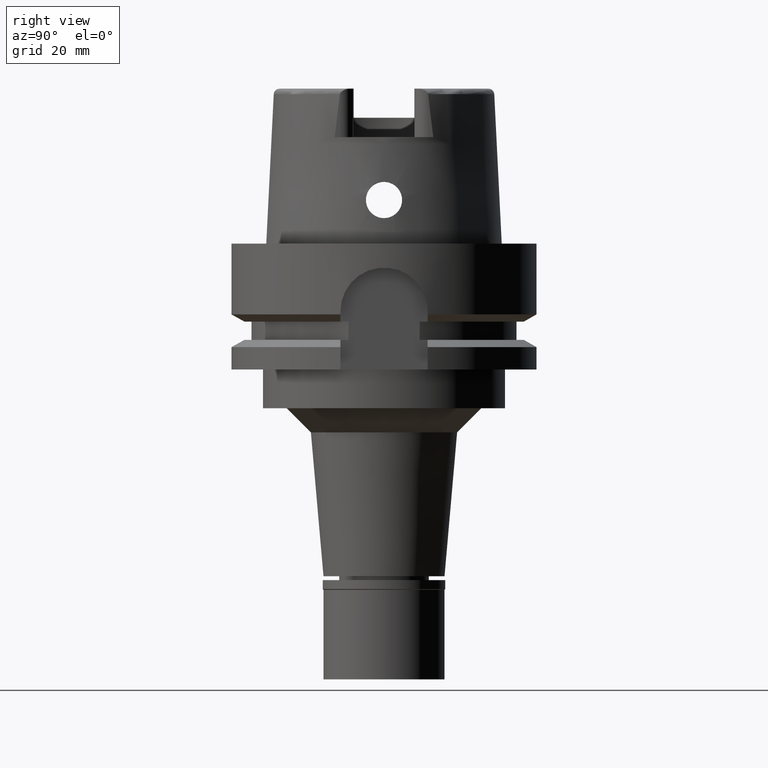
[diagram: clean part render]
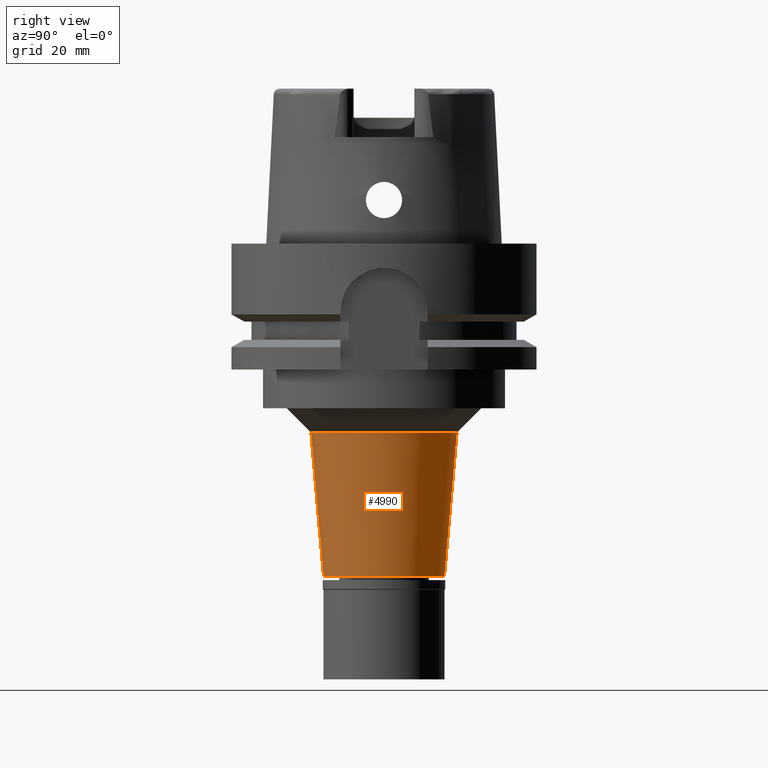
[diagram: same view with one face highlighted and labeled with its STEP entity id]
A machine part, right view. The second image highlights one B-rep face of the part: STEP entity #4990.
In plain terms, the highlighted conical surface has half-angle 5 deg.
Its self-contained STEP definition (entity closure, byte-faithful):
#407 = CONICAL_SURFACE ( 'NONE', #1316, 13.79920665335999885, 0.08726646259969973729 ) ;
#708 = CARTESIAN_POINT ( 'NONE',  ( 0.0000000000000000000, 0.0000000000000000000, -53.85000000000000142 ) ) ;
#987 = ORIENTED_EDGE ( 'NONE', *, *, #5597, .T. ) ;
#1211 = DIRECTION ( 'NONE',  ( 0.0000000000000000000, -1.000000000000000000, 0.0000000000000000000 ) ) ;
#1266 = DIRECTION ( 'NONE',  ( 0.0000000000000000000, 0.0000000000000000000, 1.000000000000000000 ) ) ;
#1316 = AXIS2_PLACEMENT_3D ( 'NONE', #708, #3219, #3186 ) ;
#1318 = VERTEX_POINT ( 'NONE', #3372 ) ;
#1376 = VERTEX_POINT ( 'NONE', #5562 ) ;
#1569 = ORIENTED_EDGE ( 'NONE', *, *, #2669, .F. ) ;
#1581 = AXIS2_PLACEMENT_3D ( 'NONE', #5582, #1266, #1211 ) ;
#1613 = LINE ( 'NONE', #2465, #5566 ) ;
#1760 = ORIENTED_EDGE ( 'NONE', *, *, #2002, .F. ) ;
#1801 = DIRECTION ( 'NONE',  ( 0.0000000000000000000, -1.000000000000000000, 0.0000000000000000000 ) ) ;
#2002 = EDGE_CURVE ( 'NONE', #2562, #2535, #3128, .T. ) ;
#2011 = FACE_OUTER_BOUND ( 'NONE', #2607, .T. ) ;
#2020 = DIRECTION ( 'NONE',  ( 0.0000000000000000000, 0.08715574274766389740, -0.9961946980917451011 ) ) ;
#2253 = CARTESIAN_POINT ( 'NONE',  ( 0.0000000000000000000, 0.0000000000000000000, -39.00000000000000000 ) ) ;
#2267 = ORIENTED_EDGE ( 'NONE', *, *, #2910, .T. ) ;
#2465 = CARTESIAN_POINT ( 'NONE',  ( 0.0000000000000000000, -15.09841330671999948, -39.00000000000000000 ) ) ;
#2535 = VERTEX_POINT ( 'NONE', #5030 ) ;
#2562 = VERTEX_POINT ( 'NONE', #4191 ) ;
#2607 = EDGE_LOOP ( 'NONE', ( #1760, #2267, #987, #1569 ) ) ;
#2669 = EDGE_CURVE ( 'NONE', #2535, #1318, #5174, .T. ) ;
#2910 = EDGE_CURVE ( 'NONE', #2562, #1376, #1613, .T. ) ;
#3128 = CIRCLE ( 'NONE', #4337, 15.09841330671999948 ) ;
#3186 = DIRECTION ( 'NONE',  ( 0.0000000000000000000, 1.000000000000000000, 0.0000000000000000000 ) ) ;
#3219 = DIRECTION ( 'NONE',  ( 0.0000000000000000000, 0.0000000000000000000, 1.000000000000000000 ) ) ;
#3372 = CARTESIAN_POINT ( 'NONE',  ( 0.0000000000000000000, 12.50000000000000000, -68.70000000000000284 ) ) ;
#3676 = VECTOR ( 'NONE', #5563, 1000.000000000000114 ) ;
#3884 = DIRECTION ( 'NONE',  ( 0.0000000000000000000, 0.0000000000000000000, 1.000000000000000000 ) ) ;
#3919 = CARTESIAN_POINT ( 'NONE',  ( 0.0000000000000000000, 15.09841330671999948, -39.00000000000000000 ) ) ;
#4191 = CARTESIAN_POINT ( 'NONE',  ( 0.0000000000000000000, -15.09841330671999948, -39.00000000000000000 ) ) ;
#4337 = AXIS2_PLACEMENT_3D ( 'NONE', #2253, #3884, #1801 ) ;
#4501 = CIRCLE ( 'NONE', #1581, 12.50000000000000000 ) ;
#4990 = ADVANCED_FACE ( 'NONE', ( #2011 ), #407, .T. ) ;
#5030 = CARTESIAN_POINT ( 'NONE',  ( 0.0000000000000000000, 15.09841330671999948, -39.00000000000000000 ) ) ;
#5174 = LINE ( 'NONE', #3919, #3676 ) ;
#5562 = CARTESIAN_POINT ( 'NONE',  ( 0.0000000000000000000, -12.50000000000000000, -68.70000000000000284 ) ) ;
#5563 = DIRECTION ( 'NONE',  ( 0.0000000000000000000, -0.08715574274766389740, -0.9961946980917451011 ) ) ;
#5566 = VECTOR ( 'NONE', #2020, 1000.000000000000114 ) ;
#5582 = CARTESIAN_POINT ( 'NONE',  ( 0.0000000000000000000, 0.0000000000000000000, -68.70000000000000284 ) ) ;
#5597 = EDGE_CURVE ( 'NONE', #1376, #1318, #4501, .T. ) ;